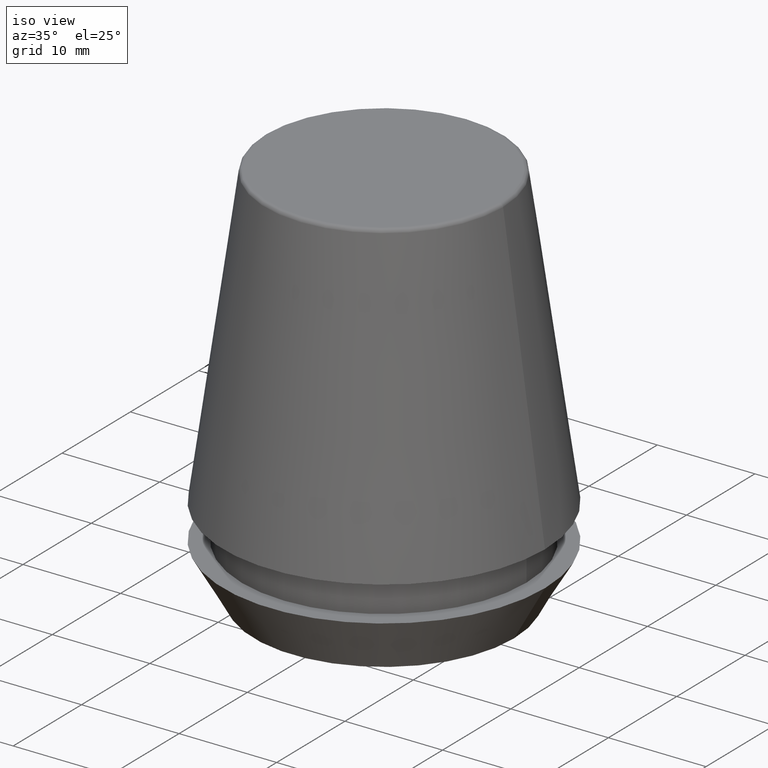
[diagram: clean part render]
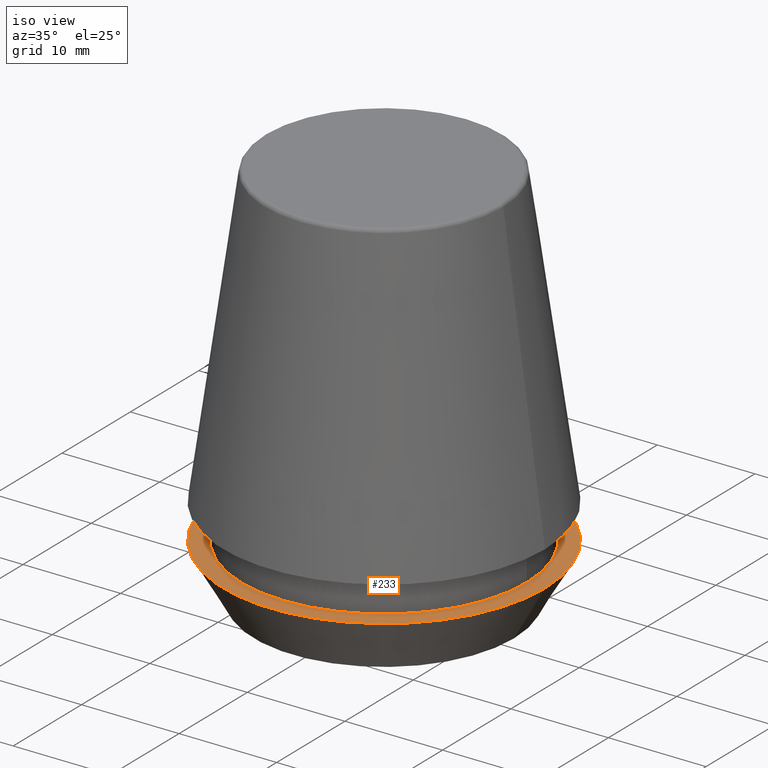
[diagram: same view with one face highlighted and labeled with its STEP entity id]
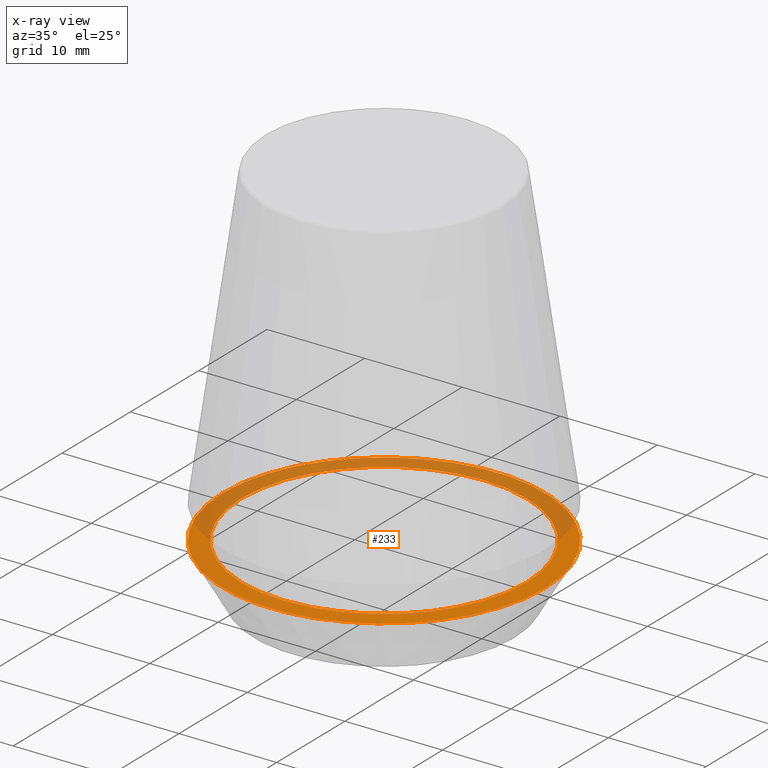
[diagram: x-ray of the same camera — body ghosted, the highlighted face saturated]
A machine part, iso view. The second image highlights one B-rep face of the part: STEP entity #233.
The next image is the same camera in x-ray: the body ghosted, the highlighted face saturated — about 46% of this face is hidden behind the body in this view.
In plain terms, the highlighted planar face has unit normal (0, 0, -1).
Its self-contained STEP definition (entity closure, byte-faithful):
#3 = DIRECTION ( 'NONE',  ( 1.000000000000000000, 0.0000000000000000000, 0.0000000000000000000 ) ) ;
#10 = DIRECTION ( 'NONE',  ( -0.0000000000000000000, -0.0000000000000000000, 1.000000000000000000 ) ) ;
#32 = CIRCLE ( 'NONE', #194, 14.60000000000000000 ) ;
#37 = CARTESIAN_POINT ( 'NONE',  ( -16.50000000000000000, 2.020667218593133100E-015, 5.500000000000005300 ) ) ;
#43 = EDGE_CURVE ( 'NONE', #221, #229, #32, .T. ) ;
#53 = DIRECTION ( 'NONE',  ( -0.0000000000000000000, -0.0000000000000000000, 1.000000000000000000 ) ) ;
#65 = CARTESIAN_POINT ( 'NONE',  ( 0.0000000000000000000, 0.0000000000000000000, 5.500000000000005300 ) ) ;
#67 = EDGE_LOOP ( 'NONE', ( #216, #344 ) ) ;
#96 = FACE_OUTER_BOUND ( 'NONE', #67, .T. ) ;
#100 = DIRECTION ( 'NONE',  ( 1.000000000000000000, 0.0000000000000000000, 0.0000000000000000000 ) ) ;
#118 = CARTESIAN_POINT ( 'NONE',  ( 14.60000000000000000, 0.0000000000000000000, 5.500000000000005300 ) ) ;
#130 = EDGE_CURVE ( 'NONE', #229, #221, #223, .T. ) ;
#157 = ORIENTED_EDGE ( 'NONE', *, *, #130, .F. ) ;
#160 = CIRCLE ( 'NONE', #232, 16.50000000000000000 ) ;
#162 = FACE_BOUND ( 'NONE', #177, .T. ) ;
#167 = VERTEX_POINT ( 'NONE', #37 ) ;
#177 = EDGE_LOOP ( 'NONE', ( #187, #157 ) ) ;
#187 = ORIENTED_EDGE ( 'NONE', *, *, #43, .F. ) ;
#194 = AXIS2_PLACEMENT_3D ( 'NONE', #290, #10, #100 ) ;
#203 = DIRECTION ( 'NONE',  ( 0.0000000000000000000, 0.0000000000000000000, -1.000000000000000000 ) ) ;
#216 = ORIENTED_EDGE ( 'NONE', *, *, #238, .T. ) ;
#221 = VERTEX_POINT ( 'NONE', #118 ) ;
#223 = CIRCLE ( 'NONE', #322, 14.60000000000000000 ) ;
#227 = DIRECTION ( 'NONE',  ( -0.0000000000000000000, -0.0000000000000000000, 1.000000000000000000 ) ) ;
#229 = VERTEX_POINT ( 'NONE', #314 ) ;
#232 = AXIS2_PLACEMENT_3D ( 'NONE', #332, #299, #384 ) ;
#233 = ADVANCED_FACE ( 'NONE', ( #162, #96 ), #320, .F. ) ;
#238 = EDGE_CURVE ( 'NONE', #379, #167, #160, .T. ) ;
#246 = CIRCLE ( 'NONE', #253, 16.50000000000000000 ) ;
#253 = AXIS2_PLACEMENT_3D ( 'NONE', #65, #227, #3 ) ;
#275 = CARTESIAN_POINT ( 'NONE',  ( 16.50000000000000000, 0.0000000000000000000, 5.500000000000005300 ) ) ;
#282 = DIRECTION ( 'NONE',  ( 1.000000000000000000, 0.0000000000000000000, 0.0000000000000000000 ) ) ;
#290 = CARTESIAN_POINT ( 'NONE',  ( 0.0000000000000000000, 0.0000000000000000000, 5.500000000000005300 ) ) ;
#299 = DIRECTION ( 'NONE',  ( -0.0000000000000000000, -0.0000000000000000000, 1.000000000000000000 ) ) ;
#304 = DIRECTION ( 'NONE',  ( -1.000000000000000000, 0.0000000000000000000, -0.0000000000000000000 ) ) ;
#307 = EDGE_CURVE ( 'NONE', #167, #379, #246, .T. ) ;
#309 = CARTESIAN_POINT ( 'NONE',  ( 0.0000000000000000000, 16.50000000000000000, 5.500000000000002700 ) ) ;
#314 = CARTESIAN_POINT ( 'NONE',  ( -14.60000000000000000, 1.787984326755135800E-015, 5.500000000000005300 ) ) ;
#320 = PLANE ( 'NONE',  #346 ) ;
#322 = AXIS2_PLACEMENT_3D ( 'NONE', #329, #53, #282 ) ;
#329 = CARTESIAN_POINT ( 'NONE',  ( 0.0000000000000000000, 0.0000000000000000000, 5.500000000000005300 ) ) ;
#332 = CARTESIAN_POINT ( 'NONE',  ( 0.0000000000000000000, 0.0000000000000000000, 5.500000000000005300 ) ) ;
#344 = ORIENTED_EDGE ( 'NONE', *, *, #307, .T. ) ;
#346 = AXIS2_PLACEMENT_3D ( 'NONE', #309, #203, #304 ) ;
#379 = VERTEX_POINT ( 'NONE', #275 ) ;
#384 = DIRECTION ( 'NONE',  ( 1.000000000000000000, 0.0000000000000000000, 0.0000000000000000000 ) ) ;